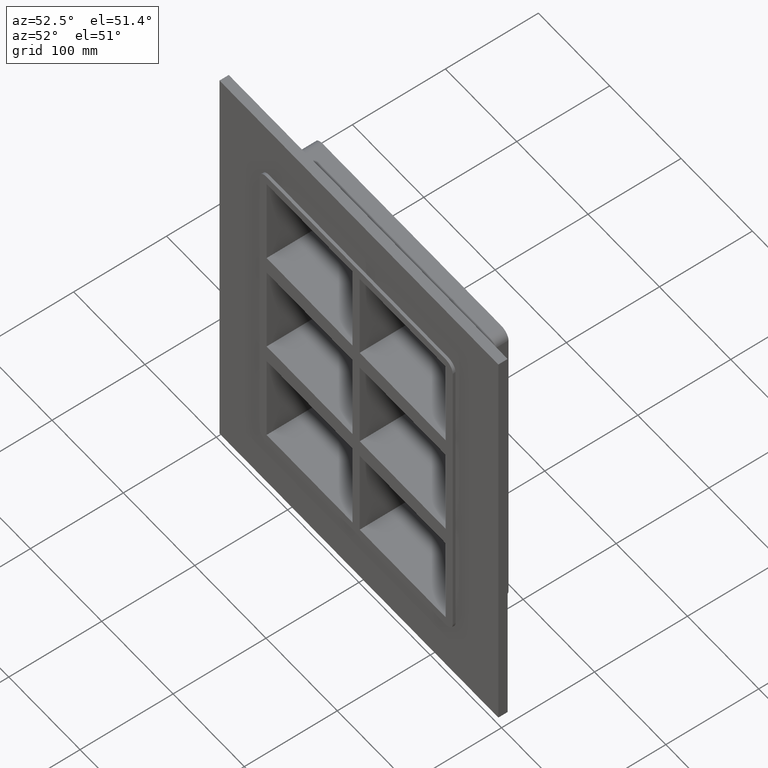
[diagram: clean part render]
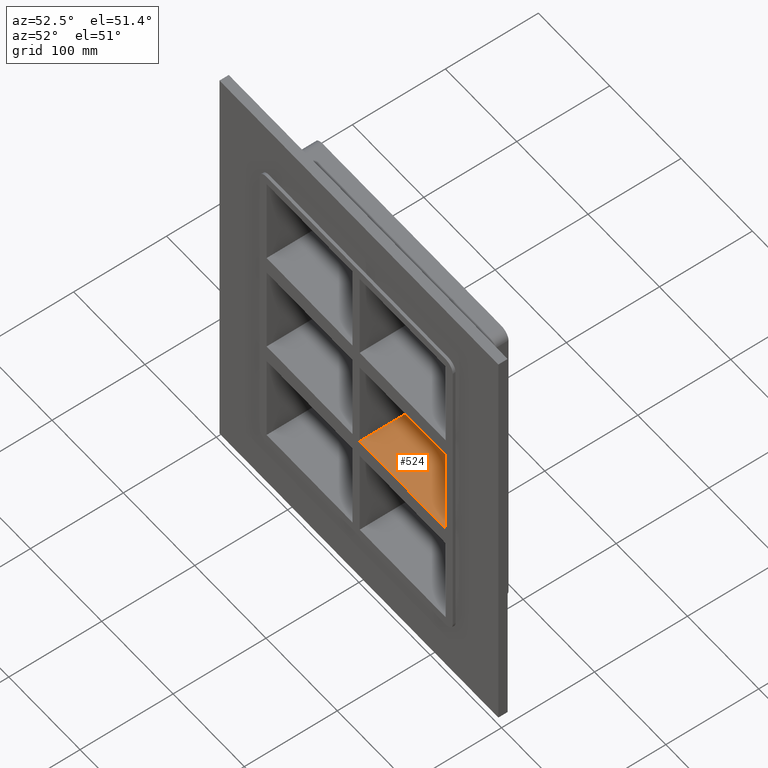
[diagram: same view with one face highlighted and labeled with its STEP entity id]
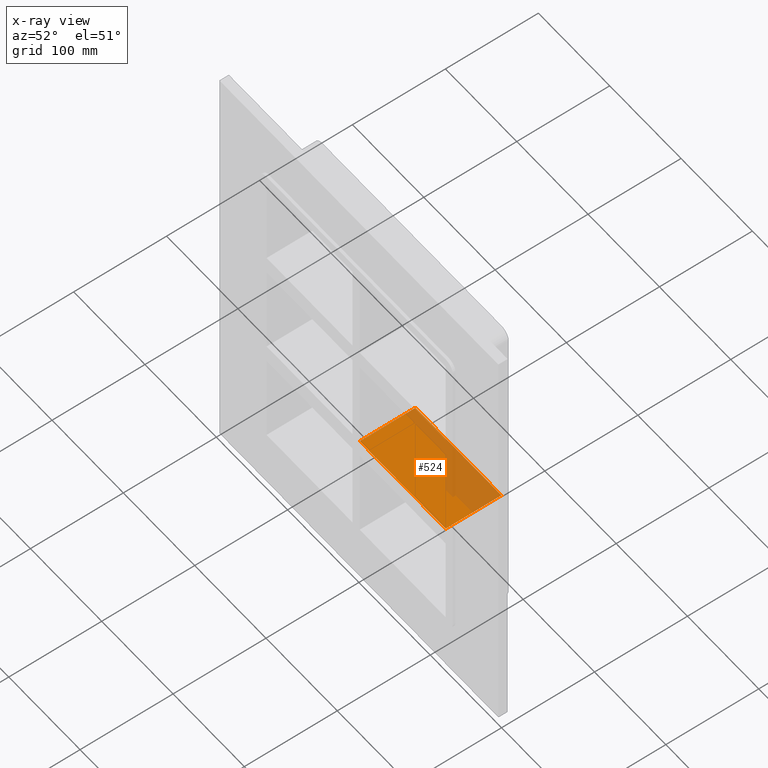
[diagram: x-ray of the same camera — body ghosted, the highlighted face saturated]
A machine part, auxiliary view. The second image highlights one B-rep face of the part: STEP entity #524.
The next image is the same camera in x-ray: the body ghosted, the highlighted face saturated — about 33% of this face is hidden behind the body in this view.
In plain terms, the highlighted planar face has unit normal (0, 0, 1).
Its self-contained STEP definition (entity closure, byte-faithful):
#265=CARTESIAN_POINT('',(125.49999999999989,57.0,-50.500000000000114));
#266=VERTEX_POINT('',#265);
#273=CARTESIAN_POINT('',(125.4999999999999,-3.0,-50.500000000000114));
#274=VERTEX_POINT('',#273);
#275=CARTESIAN_POINT('',(125.49999999999999,57.000000000000007,-50.500000000000114));
#276=DIRECTION('',(0.0,-1.0,0.0));
#277=VECTOR('',#276,60.000000000000007);
#278=LINE('',#275,#277);
#279=EDGE_CURVE('',#266,#274,#278,.T.);
#494=CARTESIAN_POINT('',(-125.4999999999997,-3.0,-50.500000000000114));
#495=DIRECTION('',(0.0,0.0,1.0));
#496=DIRECTION('',(1.0,0.0,0.0));
#497=AXIS2_PLACEMENT_3D('',#494,#495,#496);
#498=PLANE('',#497);
#499=CARTESIAN_POINT('',(5.0,-3.0,-50.500000000000114));
#500=VERTEX_POINT('',#499);
#501=CARTESIAN_POINT('',(5.0,57.0,-50.500000000000114));
#502=VERTEX_POINT('',#501);
#503=CARTESIAN_POINT('',(5.0,-3.0,-50.500000000000114));
#504=DIRECTION('',(0.0,1.0,0.0));
#505=VECTOR('',#504,60.0);
#506=LINE('',#503,#505);
#507=EDGE_CURVE('',#500,#502,#506,.T.);
#508=ORIENTED_EDGE('',*,*,#507,.F.);
#509=CARTESIAN_POINT('',(5.000000000000014,-3.0,-50.500000000000114));
#510=DIRECTION('',(1.0,0.0,0.0));
#511=VECTOR('',#510,120.49999999999989);
#512=LINE('',#509,#511);
#513=EDGE_CURVE('',#500,#274,#512,.T.);
#514=ORIENTED_EDGE('',*,*,#513,.T.);
#515=ORIENTED_EDGE('',*,*,#279,.F.);
#516=CARTESIAN_POINT('',(5.000000000000014,57.0,-50.500000000000114));
#517=DIRECTION('',(1.0,0.0,0.0));
#518=VECTOR('',#517,120.49999999999989);
#519=LINE('',#516,#518);
#520=EDGE_CURVE('',#502,#266,#519,.T.);
#521=ORIENTED_EDGE('',*,*,#520,.F.);
#522=EDGE_LOOP('',(#508,#514,#515,#521));
#523=FACE_OUTER_BOUND('',#522,.T.);
#524=ADVANCED_FACE('',(#523),#498,.T.);